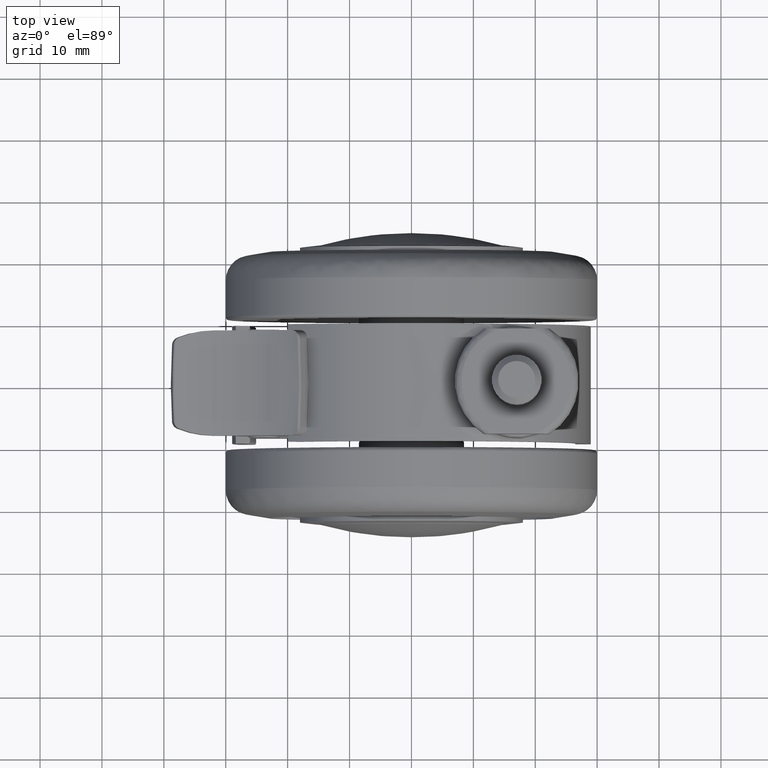
[diagram: clean part render]
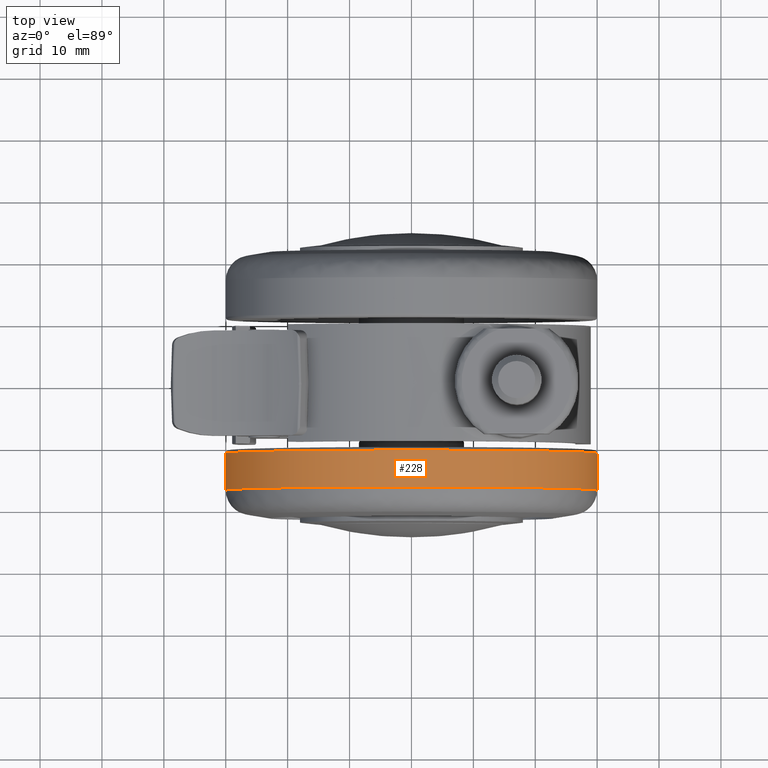
[diagram: same view with one face highlighted and labeled with its STEP entity id]
A machine part, top view. The second image highlights one B-rep face of the part: STEP entity #228.
In plain terms, the highlighted cylindrical surface (partial cylindrical patch) has radius 30 mm, axis along (-0, 1, -0).
Its self-contained STEP definition (entity closure, byte-faithful):
#228=ADVANCED_FACE('',(#754),#753,.T.);
#753=CYLINDRICAL_SURFACE('',#3523,3.00000000000E+01);
#754=FACE_OUTER_BOUND('',#3524,.T.);
#3520=CARTESIAN_POINT('',(0.00000000000E+00,0.00000000000E+00,5.47813987732E+00));
#3521=DIRECTION('',(-0.00000000000E+00,-0.00000000000E+00,-1.00000000000E+00));
#3522=DIRECTION('',(1.00000000000E+00,1.22464679915E-16,0.00000000000E+00));
#3523=AXIS2_PLACEMENT_3D('',#3520,#3521,#3522);
#3524=EDGE_LOOP('',(#5937,#5938,#5939,#5940));
#5937=ORIENTED_EDGE('',*,*,#7021,.T.);
#5938=ORIENTED_EDGE('',*,*,#7018,.T.);
#5939=ORIENTED_EDGE('',*,*,#7017,.T.);
#5940=ORIENTED_EDGE('',*,*,#7020,.F.);
#7017=EDGE_CURVE('',#8032,#8031,#8051,.T.);
#7018=EDGE_CURVE('',#8057,#8032,#8058,.T.);
#7020=EDGE_CURVE('',#8064,#8031,#8071,.T.);
#7021=EDGE_CURVE('',#8064,#8057,#8077,.T.);
#8031=VERTEX_POINT('',#11674);
#8032=VERTEX_POINT('',#11675);
#8051=CIRCLE('',#11690,3.00000000000E+01);
#8057=VERTEX_POINT('',#11691);
#8058=(BOUNDED_CURVE() B_SPLINE_CURVE(1,(#11692,#11693),.UNSPECIFIED.,.F.,.F.) B_SPLINE_CURVE_WITH_KNOTS((2,2),(8.33333347523E-02,9.16666668865E-01),.UNSPECIFIED.) CURVE() GEOMETRIC_REPRESENTATION_ITEM() RATIONAL_B_SPLINE_CURVE((1.00000000000E+00,1.00000000000E+00)) REPRESENTATION_ITEM('') );
#8064=VERTEX_POINT('',#11694);
#8071=(BOUNDED_CURVE() B_SPLINE_CURVE(1,(#11699,#11700),.UNSPECIFIED.,.F.,.F.) B_SPLINE_CURVE_WITH_KNOTS((2,2),(8.33333333333E-02,9.16666666667E-01),.UNSPECIFIED.) CURVE() GEOMETRIC_REPRESENTATION_ITEM() RATIONAL_B_SPLINE_CURVE((7.50000000000E-01,7.50000000000E-01)) REPRESENTATION_ITEM('') );
#8077=CIRCLE('',#11704,3.00000000000E+01);
#11674=CARTESIAN_POINT('',(-3.00000000000E+01,2.36847578587E-15,2.50000000000E+00));
#11675=CARTESIAN_POINT('',(3.00000000000E+01,0.00000000000E+00,2.50000000000E+00));
#11687=CARTESIAN_POINT('',(0.00000000000E+00,0.00000000000E+00,2.50000000000E+00));
#11688=DIRECTION('',(0.00000000000E+00,0.00000000000E+00,1.00000000000E+00));
#11689=DIRECTION('',(1.00000000000E+00,-1.22460635382E-16,0.00000000000E+00));
#11690=AXIS2_PLACEMENT_3D('',#11687,#11688,#11689);
#11691=CARTESIAN_POINT('',(3.00000000000E+01,-2.36847578587E-15,8.45627996854E+00));
#11692=CARTESIAN_POINT('',(3.00000000000E+01,3.67394039744E-15,8.45627995840E+00));
#11693=CARTESIAN_POINT('',(3.00000000000E+01,3.67394039744E-15,2.49999998428E+00));
#11694=CARTESIAN_POINT('',(-3.00000000000E+01,3.67394039744E-15,8.45627996854E+00));
#11699=CARTESIAN_POINT('',(-3.00000000000E+01,-3.55271367880E-15,8.45627996854E+00));
#11700=CARTESIAN_POINT('',(-3.00000000000E+01,-3.55271367880E-15,2.50000000000E+00));
#11701=CARTESIAN_POINT('',(0.00000000000E+00,0.00000000000E+00,8.45627996854E+00));
#11702=DIRECTION('',(0.00000000000E+00,0.00000000000E+00,-1.00000000000E+00));
#11703=DIRECTION('',(-1.00000000000E+00,4.04453249757E-21,0.00000000000E+00));
#11704=AXIS2_PLACEMENT_3D('',#11701,#11702,#11703);